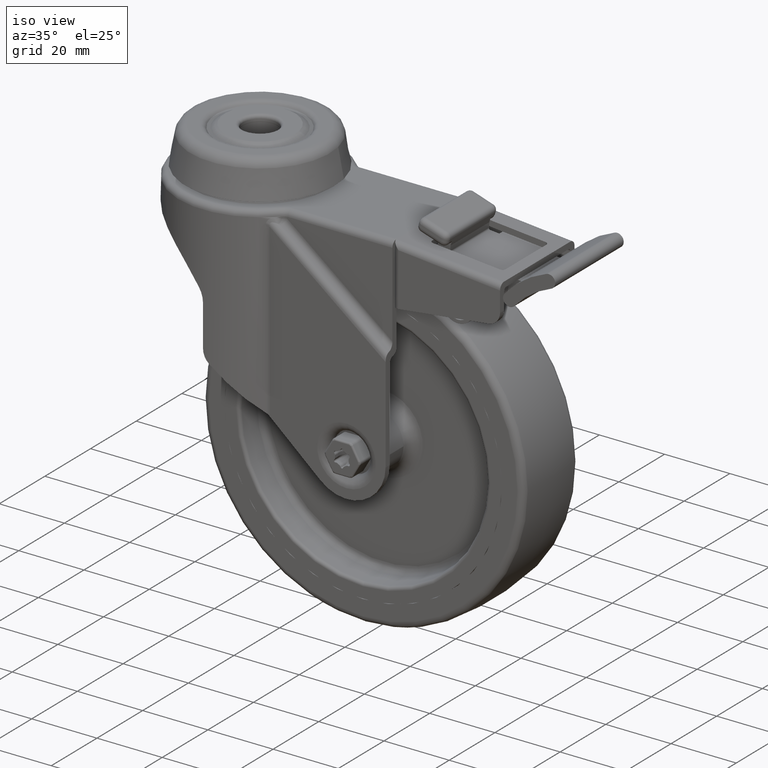
[diagram: clean part render]
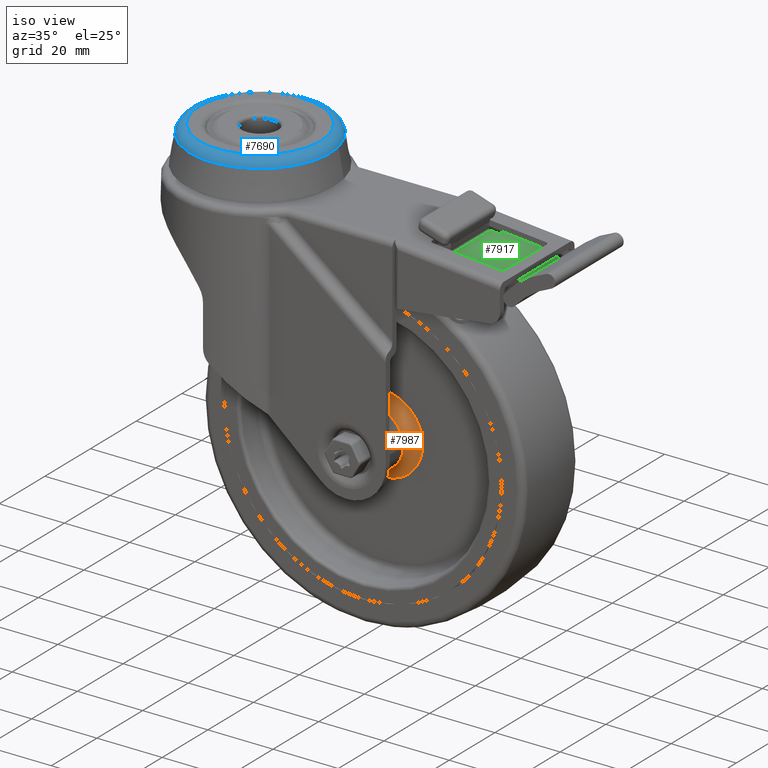
[diagram: same view with three faces highlighted in distinct colors, each labeled with its STEP entity id]
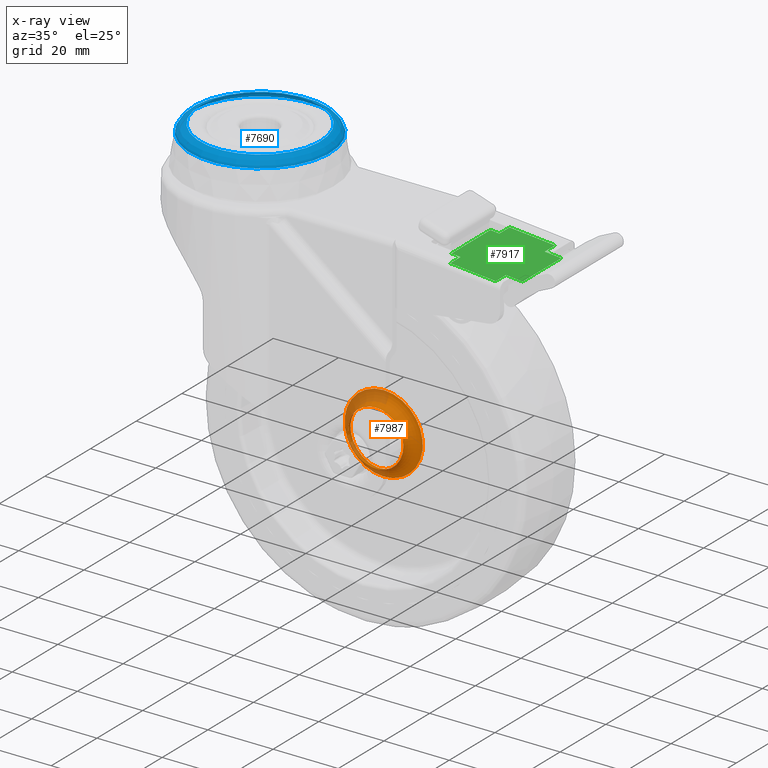
[diagram: x-ray of the same camera — body ghosted, the three highlighted faces saturated]
A machine part, iso view with three faces highlighted in distinct colors.
The next image is the same camera in x-ray (body ghosted, the three faces saturated) — at least one of them is partly hidden behind the body in this view.
Their STEP definitions:

[orange] entity #7987 — the highlighted toroidal blend (fillet) surface has major radius 12 mm and minor (blend) radius 3.5 mm.
#768=TOROIDAL_SURFACE('',#8843,12.,3.49999999999999);
#1087=FACE_OUTER_BOUND('',#1585,.T.);
#1585=EDGE_LOOP('',(#6801,#6802,#6803,#6804,#6805));
#3144=CIRCLE('',#8844,12.);
#3145=CIRCLE('',#8845,3.49999999999999);
#3146=CIRCLE('',#8846,8.50000000000001);
#3147=CIRCLE('',#8847,8.50000000000001);
#3820=VERTEX_POINT('',#14880);
#3821=VERTEX_POINT('',#14882);
#3822=VERTEX_POINT('',#14884);
#4852=EDGE_CURVE('',#3820,#3820,#3144,.T.);
#4853=EDGE_CURVE('',#3820,#3821,#3145,.T.);
#4854=EDGE_CURVE('',#3821,#3822,#3146,.T.);
#4855=EDGE_CURVE('',#3822,#3821,#3147,.T.);
#6801=ORIENTED_EDGE('',*,*,#4852,.F.);
#6802=ORIENTED_EDGE('',*,*,#4853,.T.);
#6803=ORIENTED_EDGE('',*,*,#4854,.T.);
#6804=ORIENTED_EDGE('',*,*,#4855,.T.);
#6805=ORIENTED_EDGE('',*,*,#4853,.F.);
#7987=ADVANCED_FACE('',(#1087),#768,.F.);
#8843=AXIS2_PLACEMENT_3D('',#14879,#10822,#10823);
#8844=AXIS2_PLACEMENT_3D('',#14881,#10824,#10825);
#8845=AXIS2_PLACEMENT_3D('',#14883,#10826,#10827);
#8846=AXIS2_PLACEMENT_3D('',#14885,#10828,#10829);
#8847=AXIS2_PLACEMENT_3D('',#14886,#10830,#10831);
#10822=DIRECTION('center_axis',(-3.49148336110938E-15,1.,0.));
#10823=DIRECTION('ref_axis',(0.,0.,-1.));
#10824=DIRECTION('center_axis',(-3.49148336110938E-15,1.,0.));
#10825=DIRECTION('ref_axis',(-1.,-3.49148336110938E-15,0.));
#10826=DIRECTION('center_axis',(-1.,-3.49148336110938E-15,1.22464679914735E-16));
#10827=DIRECTION('ref_axis',(1.22464679914735E-16,0.,1.));
#10828=DIRECTION('center_axis',(-3.49148336110938E-15,1.,0.));
#10829=DIRECTION('ref_axis',(-1.,-3.49148336110938E-15,0.));
#10830=DIRECTION('center_axis',(-3.49148336110938E-15,1.,0.));
#10831=DIRECTION('ref_axis',(-1.,-3.49148336110938E-15,0.));
#14879=CARTESIAN_POINT('Origin',(2.44293653231878E-14,-6.5,0.));
#14880=CARTESIAN_POINT('',(1.36787497182818E-14,-3.00000000000001,12.));
#14881=CARTESIAN_POINT('Origin',(1.2209173559305E-14,-3.00000000000001,
0.));
#14882=CARTESIAN_POINT('',(2.5470315102463E-14,-6.5,8.50000000000001));
#14883=CARTESIAN_POINT('Origin',(2.58989414821646E-14,-6.5,12.));
#14884=CARTESIAN_POINT('',(8.50000000000003,-6.49999999999997,1.04094977927525E-15));
#14885=CARTESIAN_POINT('Origin',(2.44293653231878E-14,-6.5,0.));
#14886=CARTESIAN_POINT('Origin',(2.44293653231878E-14,-6.5,0.));

[blue] entity #7690 — the highlighted toroidal blend (fillet) surface has major radius 18.4963 mm and minor (blend) radius 3 mm.
#748=TOROIDAL_SURFACE('',#8287,18.496270939773,3.);
#790=FACE_OUTER_BOUND('',#1263,.T.);
#1263=EDGE_LOOP('',(#5298,#5299,#5300,#5301,#5302));
#2918=CIRCLE('',#8285,21.4478806700727);
#2919=CIRCLE('',#8286,21.4478806700727);
#2920=CIRCLE('',#8288,18.496270939773);
#2921=CIRCLE('',#8289,3.);
#3343=VERTEX_POINT('',#11645);
#3344=VERTEX_POINT('',#11647);
#3345=VERTEX_POINT('',#11651);
#4101=EDGE_CURVE('',#3344,#3343,#2918,.T.);
#4102=EDGE_CURVE('',#3343,#3344,#2919,.T.);
#4103=EDGE_CURVE('',#3345,#3345,#2920,.T.);
#4104=EDGE_CURVE('',#3345,#3344,#2921,.T.);
#5298=ORIENTED_EDGE('',*,*,#4103,.T.);
#5299=ORIENTED_EDGE('',*,*,#4104,.T.);
#5300=ORIENTED_EDGE('',*,*,#4101,.T.);
#5301=ORIENTED_EDGE('',*,*,#4102,.T.);
#5302=ORIENTED_EDGE('',*,*,#4104,.F.);
#7690=ADVANCED_FACE('',(#790),#748,.T.);
#8285=AXIS2_PLACEMENT_3D('',#11648,#9231,#9232);
#8286=AXIS2_PLACEMENT_3D('',#11649,#9233,#9234);
#8287=AXIS2_PLACEMENT_3D('',#11650,#9235,#9236);
#8288=AXIS2_PLACEMENT_3D('',#11652,#9237,#9238);
#8289=AXIS2_PLACEMENT_3D('',#11653,#9239,#9240);
#9231=DIRECTION('center_axis',(-2.22422421698416E-16,3.27755668452991E-32,
1.));
#9232=DIRECTION('ref_axis',(-1.,6.12323399573676E-17,-2.22422421698416E-16));
#9233=DIRECTION('center_axis',(-2.22422421698416E-16,3.27755668452991E-32,
1.));
#9234=DIRECTION('ref_axis',(-1.,6.12323399573676E-17,-2.22422421698416E-16));
#9235=DIRECTION('center_axis',(-2.16840434497101E-16,0.,1.));
#9236=DIRECTION('ref_axis',(1.,0.,2.06588952611495E-16));
#9237=DIRECTION('center_axis',(2.16840434497101E-16,0.,-1.));
#9238=DIRECTION('ref_axis',(-1.,0.,-2.16840434497101E-16));
#9239=DIRECTION('center_axis',(1.22464679914735E-16,-1.,2.65552944032596E-32));
#9240=DIRECTION('ref_axis',(-1.,-1.22464679914735E-16,-2.06588952611495E-16));
#11645=CARTESIAN_POINT('',(21.4478806700727,0.,-2.46334368540005));
#11647=CARTESIAN_POINT('',(-21.4478806700727,-2.62660784110989E-15,-2.46334368540005));
#11648=CARTESIAN_POINT('Origin',(0.,-1.31330392055495E-15,-2.46334368540005));
#11649=CARTESIAN_POINT('Origin',(0.,-1.31330392055495E-15,-2.46334368540005));
#11650=CARTESIAN_POINT('Origin',(-1.73256585971316E-15,0.,-3.));
#11651=CARTESIAN_POINT('',(-18.496270939773,2.26513990025552E-15,-5.74546290313329E-15));
#11652=CARTESIAN_POINT('Origin',(-2.38308716320446E-15,0.,-1.73472347597681E-15));
#11653=CARTESIAN_POINT('Origin',(-18.496270939773,-2.26513990025552E-15,
-3.));

[green] entity #7917 — the highlighted planar face has unit normal (0.0905, 0, 0.9959).
#520=PLANE('',#8725);
#1017=FACE_OUTER_BOUND('',#1513,.T.);
#1513=EDGE_LOOP('',(#6443,#6444,#6445,#6446,#6447,#6448,#6449,#6450,#6451,
#6452,#6453,#6454));
#2118=LINE('',#14494,#2688);
#2123=LINE('',#14512,#2693);
#2127=LINE('',#14521,#2697);
#2138=LINE('',#14540,#2708);
#2139=LINE('',#14544,#2709);
#2140=LINE('',#14546,#2710);
#2141=LINE('',#14548,#2711);
#2142=LINE('',#14550,#2712);
#2143=LINE('',#14552,#2713);
#2144=LINE('',#14553,#2714);
#2145=LINE('',#14554,#2715);
#2146=LINE('',#14555,#2716);
#2688=VECTOR('',#10441,999.999999999999);
#2693=VECTOR('',#10456,1000.);
#2697=VECTOR('',#10462,1000.);
#2708=VECTOR('',#10477,1000.);
#2709=VECTOR('',#10482,1000.);
#2710=VECTOR('',#10483,1000.);
#2711=VECTOR('',#10484,1000.);
#2712=VECTOR('',#10485,1000.);
#2713=VECTOR('',#10486,1000.);
#2714=VECTOR('',#10487,1000.);
#2715=VECTOR('',#10488,1000.);
#2716=VECTOR('',#10489,1000.);
#3714=VERTEX_POINT('',#14491);
#3715=VERTEX_POINT('',#14493);
#3721=VERTEX_POINT('',#14508);
#3723=VERTEX_POINT('',#14511);
#3725=VERTEX_POINT('',#14517);
#3727=VERTEX_POINT('',#14520);
#3733=VERTEX_POINT('',#14539);
#3734=VERTEX_POINT('',#14543);
#3735=VERTEX_POINT('',#14545);
#3736=VERTEX_POINT('',#14547);
#3737=VERTEX_POINT('',#14549);
#3738=VERTEX_POINT('',#14551);
#4681=EDGE_CURVE('',#3714,#3715,#2118,.T.);
#4689=EDGE_CURVE('',#3721,#3723,#2123,.T.);
#4693=EDGE_CURVE('',#3725,#3727,#2127,.T.);
#4704=EDGE_CURVE('',#3733,#3723,#2138,.T.);
#4706=EDGE_CURVE('',#3714,#3734,#2139,.T.);
#4707=EDGE_CURVE('',#3735,#3734,#2140,.T.);
#4708=EDGE_CURVE('',#3735,#3736,#2141,.T.);
#4709=EDGE_CURVE('',#3737,#3736,#2142,.T.);
#4710=EDGE_CURVE('',#3737,#3738,#2143,.T.);
#4711=EDGE_CURVE('',#3733,#3738,#2144,.T.);
#4712=EDGE_CURVE('',#3721,#3727,#2145,.F.);
#4713=EDGE_CURVE('',#3725,#3715,#2146,.T.);
#6443=ORIENTED_EDGE('',*,*,#4681,.F.);
#6444=ORIENTED_EDGE('',*,*,#4706,.T.);
#6445=ORIENTED_EDGE('',*,*,#4707,.F.);
#6446=ORIENTED_EDGE('',*,*,#4708,.T.);
#6447=ORIENTED_EDGE('',*,*,#4709,.F.);
#6448=ORIENTED_EDGE('',*,*,#4710,.T.);
#6449=ORIENTED_EDGE('',*,*,#4711,.F.);
#6450=ORIENTED_EDGE('',*,*,#4704,.T.);
#6451=ORIENTED_EDGE('',*,*,#4689,.F.);
#6452=ORIENTED_EDGE('',*,*,#4712,.T.);
#6453=ORIENTED_EDGE('',*,*,#4693,.F.);
#6454=ORIENTED_EDGE('',*,*,#4713,.T.);
#7917=ADVANCED_FACE('',(#1017),#520,.T.);
#8725=AXIS2_PLACEMENT_3D('',#14542,#10480,#10481);
#10441=DIRECTION('',(0.,1.,0.));
#10456=DIRECTION('',(0.,-1.,0.));
#10462=DIRECTION('',(0.,1.,0.));
#10477=DIRECTION('',(-0.995893206467704,0.,0.0905357460425184));
#10480=DIRECTION('center_axis',(0.0905357460425184,0.,0.995893206467704));
#10481=DIRECTION('ref_axis',(-0.995893206467704,0.,0.0905357460425184));
#10482=DIRECTION('',(0.995893206467704,0.,-0.0905357460425184));
#10483=DIRECTION('',(0.,1.,0.));
#10484=DIRECTION('',(0.995893206467704,0.,-0.0905357460425184));
#10485=DIRECTION('',(0.,-1.,0.));
#10486=DIRECTION('',(0.995893206467704,0.,-0.0905357460425184));
#10487=DIRECTION('',(0.,-1.,0.));
#10488=DIRECTION('',(0.995893206467704,0.,-0.0905357460425184));
#10489=DIRECTION('',(-0.995893206467704,0.,0.0905357460425184));
#14491=CARTESIAN_POINT('',(64.6466229503871,-8.5,-15.4571157073932));
#14493=CARTESIAN_POINT('',(64.6466229503871,8.5,-15.4571157073932));
#14494=CARTESIAN_POINT('',(64.6466229503871,0.,-15.4571157073932));
#14508=CARTESIAN_POINT('',(81.3514094344865,13.,-16.9757326604931));
#14511=CARTESIAN_POINT('',(81.3514094344865,8.5,-16.9757326604931));
#14512=CARTESIAN_POINT('',(81.3514094344865,4.25,-16.9757326604931));
#14517=CARTESIAN_POINT('',(67.4089045439386,8.5,-15.7082322158979));
#14520=CARTESIAN_POINT('',(67.4089045439386,13.,-15.7082322158979));
#14521=CARTESIAN_POINT('',(67.4089045439386,4.25,-15.7082322158979));
#14539=CARTESIAN_POINT('',(86.4325800845425,8.5,-17.4376572650437));
#14540=CARTESIAN_POINT('',(81.3514094344865,8.5,-16.9757326604931));
#14542=CARTESIAN_POINT('Origin',(75.6758758061559,0.,-16.4597750579176));
#14543=CARTESIAN_POINT('',(67.4089045439386,-8.5,-15.7082322158979));
#14544=CARTESIAN_POINT('',(81.3514094344865,-8.5,-16.9757326604931));
#14545=CARTESIAN_POINT('',(67.4089045439386,-13.,-15.7082322158979));
#14546=CARTESIAN_POINT('',(67.4089045439386,-4.25,-15.7082322158979));
#14547=CARTESIAN_POINT('',(81.3514094344865,-13.,-16.9757326604931));
#14548=CARTESIAN_POINT('',(37.4060458955741,-13.,-12.9806996115011));
#14549=CARTESIAN_POINT('',(81.3514094344865,-8.5,-16.9757326604931));
#14550=CARTESIAN_POINT('',(81.3514094344865,-4.25,-16.9757326604931));
#14551=CARTESIAN_POINT('',(86.4325800845425,-8.5,-17.4376572650437));
#14552=CARTESIAN_POINT('',(81.3514094344865,-8.5,-16.9757326604931));
#14553=CARTESIAN_POINT('',(86.4325800845425,-4.25,-17.4376572650437));
#14554=CARTESIAN_POINT('',(37.4060458955741,13.,-12.9806996115011));
#14555=CARTESIAN_POINT('',(81.3514094344865,8.5,-16.9757326604931));